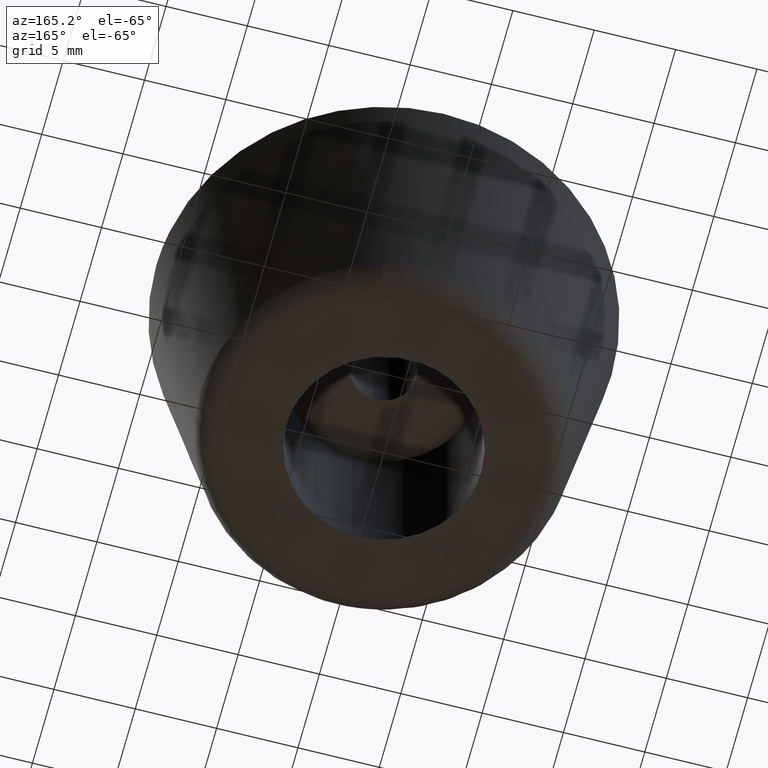
[diagram: clean part render]
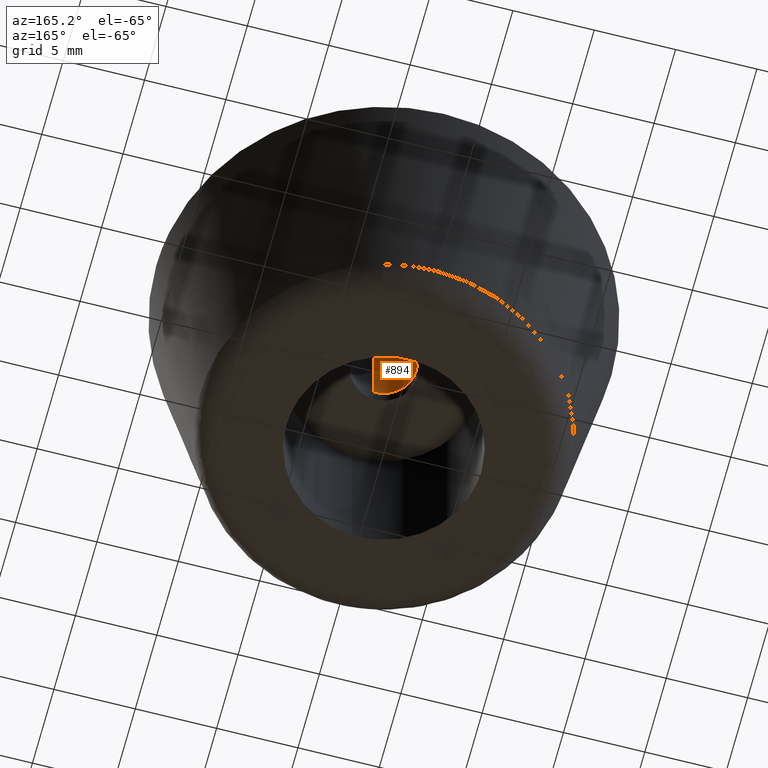
[diagram: same view with one face highlighted and labeled with its STEP entity id]
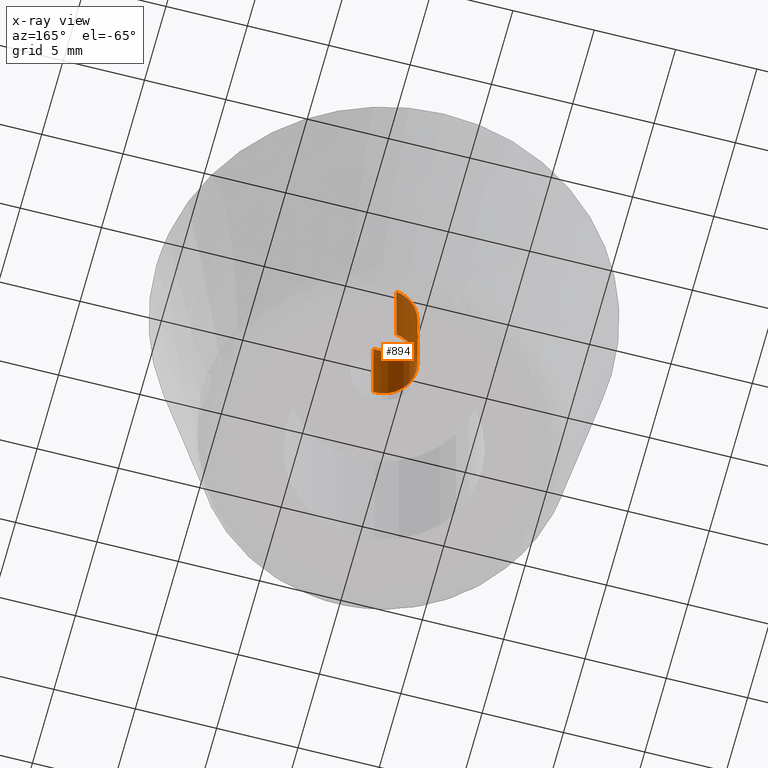
[diagram: x-ray of the same camera — body ghosted, the highlighted face saturated]
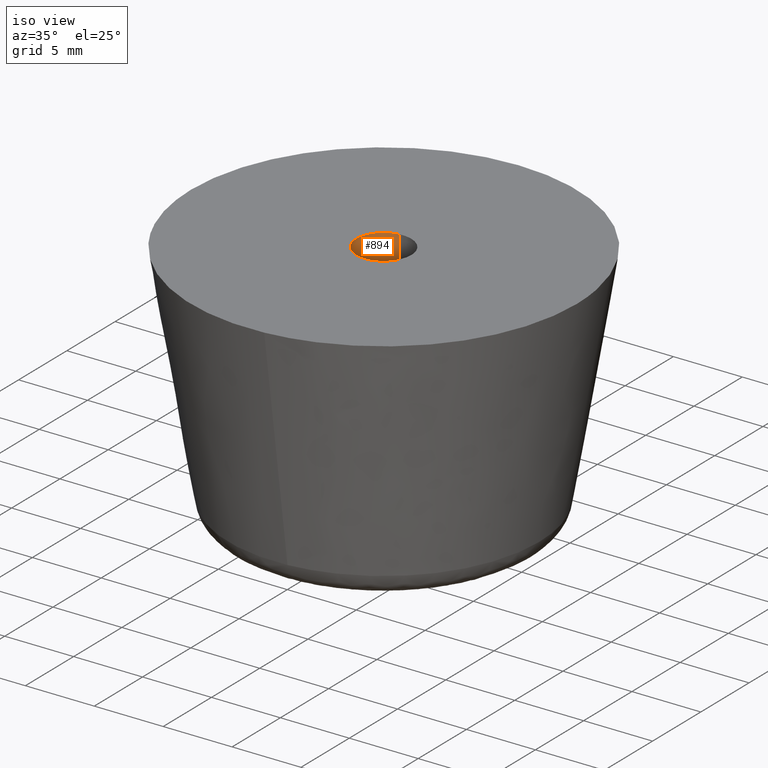
[diagram: same view with one face highlighted and labeled with its STEP entity id]
A machine part, auxiliary view. The second image highlights one B-rep face of the part: STEP entity #894.
The next image is the same camera in x-ray: the body ghosted, the highlighted face saturated — about 51% of this face is hidden behind the body in this view.
A second angle (iso view) of the same face is appended — the face is thin or edge-on in the first view.
In plain terms, the highlighted face is a freeform B-spline surface patch.
Its self-contained STEP definition (entity closure, byte-faithful):
#731=CARTESIAN_POINT('',(-0.236065761605404,1.986019374575743,17.999999999999979));
#732=VERTEX_POINT('',#731);
#750=CARTESIAN_POINT('',(-0.236065794157391,1.986019370706535,12.0));
#751=VERTEX_POINT('',#750);
#752=CARTESIAN_POINT('',(-0.236065761605404,1.986019374575743,17.999999999999979));
#753=CARTESIAN_POINT('',(-0.236065794157391,1.986019370706535,12.0));
#754=QUASI_UNIFORM_CURVE('',1,(#752,#753),.UNSPECIFIED.,.F.,.U.);
#755=EDGE_CURVE('',#732,#751,#754,.T.);
#774=CARTESIAN_POINT('',(0.122097079096483,-1.996269596842097,12.0));
#775=VERTEX_POINT('',#774);
#789=CARTESIAN_POINT('',(0.122097079096483,-1.996269596842097,18.0));
#790=VERTEX_POINT('',#789);
#791=CARTESIAN_POINT('',(0.122097079096483,-1.996269596842097,18.0));
#792=CARTESIAN_POINT('',(0.122097079096483,-1.996269596842097,12.0));
#793=QUASI_UNIFORM_CURVE('',1,(#791,#792),.UNSPECIFIED.,.F.,.U.);
#794=EDGE_CURVE('',#790,#775,#793,.T.);
#812=CARTESIAN_POINT('',(0.122097079069714,-1.996269596843733,18.149999999999999));
#813=CARTESIAN_POINT('',(-1.874172517774020,-2.118366675913447,18.150000000000002));
#814=CARTESIAN_POINT('',(-1.996269596843733,-0.122097079069714,18.149999999999999));
#815=CARTESIAN_POINT('',(-2.111572393465055,1.763086981679002,18.150000000000006));
#816=CARTESIAN_POINT('',(-0.236068469313517,1.986019052727332,18.150000000000013));
#817=CARTESIAN_POINT('',(0.122097079069714,-1.996269596843733,11.846250000000000));
#818=CARTESIAN_POINT('',(-1.874172517774020,-2.118366675913447,11.846249999999996));
#819=CARTESIAN_POINT('',(-1.996269596843733,-0.122097079069714,11.846250000000000));
#820=CARTESIAN_POINT('',(-2.111572393465055,1.763086981679002,11.846249999999998));
#821=CARTESIAN_POINT('',(-0.236068469313517,1.986019052727332,11.846250000000001));
#829=(BOUNDED_SURFACE()B_SPLINE_SURFACE(2,1,((#812,#817),(#813,#818),(#814,#819),(#815,#820),(#816,#821)),.UNSPECIFIED.,.F.,.F.,.U.)B_SPLINE_SURFACE_WITH_KNOTS((3,2,3),(2,2),(0.0,3.313708498984759,6.494868658010128),(0.0,6.303750000000009),.UNSPECIFIED.)GEOMETRIC_REPRESENTATION_ITEM()RATIONAL_B_SPLINE_SURFACE(((1.0,1.0),(0.707106781186548,0.707106781186548),(1.0,1.0),(0.718822509939086,0.718822509939086),(0.977505800795127,0.977505800795127)))REPRESENTATION_ITEM('')SURFACE());
#830=CARTESIAN_POINT('',(-2.0,0.0,18.0));
#831=VERTEX_POINT('',#830);
#832=CARTESIAN_POINT('',(-2.0,0.0,18.0));
#833=CARTESIAN_POINT('',(-2.000000000000000,1.776351490800085,18.000000000000007));
#834=CARTESIAN_POINT('',(-0.236065761605404,1.986019374575743,17.999999999999975));
#842=(BOUNDED_CURVE()B_SPLINE_CURVE(2,(#832,#833,#834),.UNSPECIFIED.,.F.,.U.)B_SPLINE_CURVE_WITH_KNOTS((3,3),(0.0,0.229562703932117),.UNSPECIFIED.)CURVE()GEOMETRIC_REPRESENTATION_ITEM()RATIONAL_B_SPLINE_CURVE((1.0,0.731050562903210,0.956027205814100))REPRESENTATION_ITEM(''));
#843=EDGE_CURVE('',#831,#732,#842,.T.);
#844=ORIENTED_EDGE('',*,*,#843,.F.);
#845=CARTESIAN_POINT('',(0.122097079096483,-1.996269596842096,18.000000000000004));
#846=CARTESIAN_POINT('',(0.061105526624022,-2.000000000000000,17.999999999999993));
#847=CARTESIAN_POINT('',(0.0,-2.0,18.0));
#848=CARTESIAN_POINT('',(-2.000000000000000,-2.000000000000000,18.000000000000007));
#849=CARTESIAN_POINT('',(-2.0,0.0,18.0));
#857=(BOUNDED_CURVE()B_SPLINE_CURVE(2,(#845,#846,#847,#848,#849),.UNSPECIFIED.,.F.,.U.)B_SPLINE_CURVE_WITH_KNOTS((3,2,3),(0.739332962237341,0.750000000000000,1.0),.UNSPECIFIED.)CURVE()GEOMETRIC_REPRESENTATION_ITEM()RATIONAL_B_SPLINE_CURVE((0.976072041663284,0.987502787897960,1.0,0.707106781186548,1.0))REPRESENTATION_ITEM(''));
#858=EDGE_CURVE('',#790,#831,#857,.T.);
#859=ORIENTED_EDGE('',*,*,#858,.F.);
#860=ORIENTED_EDGE('',*,*,#794,.T.);
#861=CARTESIAN_POINT('',(-2.0,0.0,12.0));
#862=VERTEX_POINT('',#861);
#863=CARTESIAN_POINT('',(0.122097079096483,-1.996269596842096,12.0));
#864=CARTESIAN_POINT('',(0.061105526624022,-2.000000000000000,12.000000000000005));
#865=CARTESIAN_POINT('',(0.0,-2.0,12.0));
#866=CARTESIAN_POINT('',(-2.000000000000000,-2.000000000000000,12.0));
#867=CARTESIAN_POINT('',(-2.0,0.0,12.0));
#875=(BOUNDED_CURVE()B_SPLINE_CURVE(2,(#863,#864,#865,#866,#867),.UNSPECIFIED.,.F.,.U.)B_SPLINE_CURVE_WITH_KNOTS((3,2,3),(0.739332962237341,0.750000000000000,1.0),.UNSPECIFIED.)CURVE()GEOMETRIC_REPRESENTATION_ITEM()RATIONAL_B_SPLINE_CURVE((0.976072041663284,0.987502787897960,1.0,0.707106781186548,1.0))REPRESENTATION_ITEM(''));
#876=EDGE_CURVE('',#775,#862,#875,.T.);
#877=ORIENTED_EDGE('',*,*,#876,.T.);
#878=CARTESIAN_POINT('',(-2.0,0.0,12.0));
#879=CARTESIAN_POINT('',(-1.999999999999999,1.776351461479721,12.0));
#880=CARTESIAN_POINT('',(-0.236065794157391,1.986019370706535,11.999999999999996));
#888=(BOUNDED_CURVE()B_SPLINE_CURVE(2,(#878,#879,#880),.UNSPECIFIED.,.F.,.U.)B_SPLINE_CURVE_WITH_KNOTS((3,3),(0.0,0.229562701162057),.UNSPECIFIED.)CURVE()GEOMETRIC_REPRESENTATION_ITEM()RATIONAL_B_SPLINE_CURVE((1.0,0.731050566148538,0.956027200384657))REPRESENTATION_ITEM(''));
#889=EDGE_CURVE('',#862,#751,#888,.T.);
#890=ORIENTED_EDGE('',*,*,#889,.T.);
#891=ORIENTED_EDGE('',*,*,#755,.F.);
#892=EDGE_LOOP('',(#844,#859,#860,#877,#890,#891));
#893=FACE_OUTER_BOUND('',#892,.T.);
#894=ADVANCED_FACE('',(#893),#829,.F.);